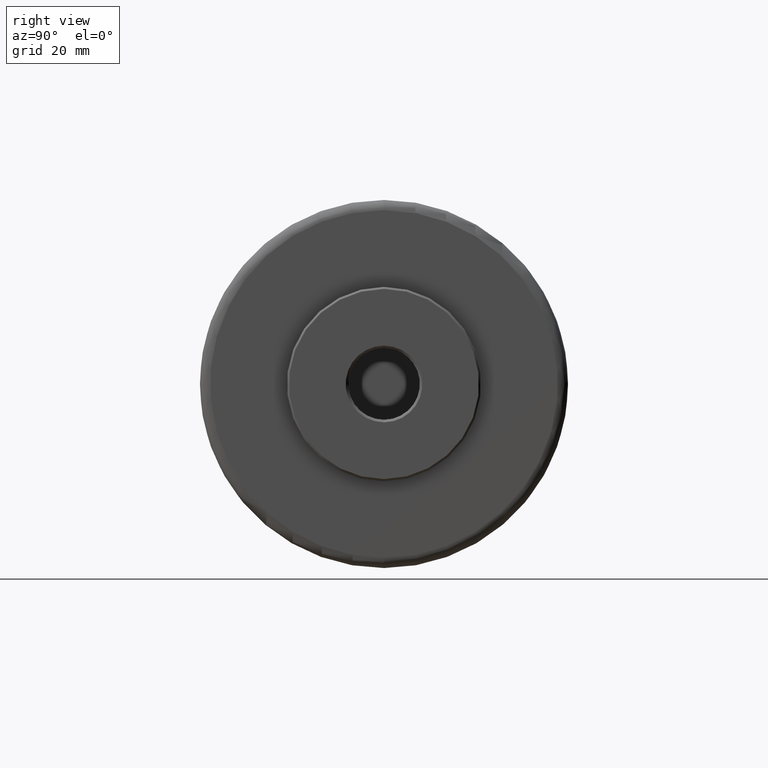
[diagram: clean part render]
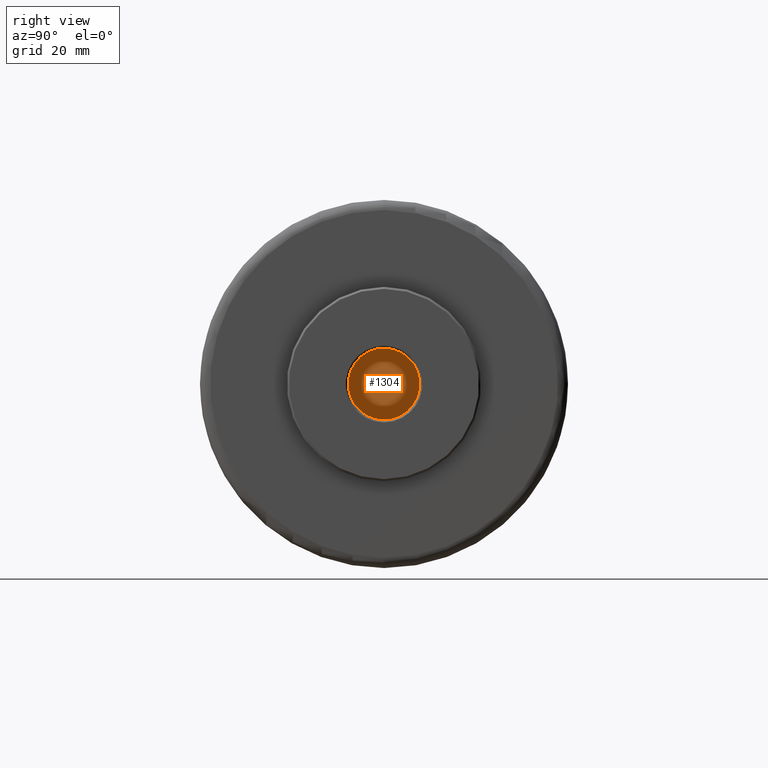
[diagram: same view with one face highlighted and labeled with its STEP entity id]
A machine part, right view. The second image highlights one B-rep face of the part: STEP entity #1304.
In plain terms, the highlighted planar face has unit normal (1, 0, 0).
Its self-contained STEP definition (entity closure, byte-faithful):
#242 = DIRECTION ( 'NONE',  ( 1.000000000000000000, 0.0000000000000000000, 0.0000000000000000000 ) ) ;
#276 = VERTEX_POINT ( 'NONE', #713 ) ;
#308 = CIRCLE ( 'NONE', #386, 6.999999999999993800 ) ;
#386 = AXIS2_PLACEMENT_3D ( 'NONE', #433, #450, #1264 ) ;
#426 = EDGE_CURVE ( 'NONE', #505, #276, #308, .T. ) ;
#433 = CARTESIAN_POINT ( 'NONE',  ( 60.50000000000003600, 0.0000000000000000000, 0.0000000000000000000 ) ) ;
#450 = DIRECTION ( 'NONE',  ( -1.000000000000000000, -0.0000000000000000000, -0.0000000000000000000 ) ) ;
#477 = CARTESIAN_POINT ( 'NONE',  ( 60.50000000000003600, 8.572527594031468300E-016, -6.999999999999993800 ) ) ;
#505 = VERTEX_POINT ( 'NONE', #477 ) ;
#673 = PLANE ( 'NONE',  #764 ) ;
#713 = CARTESIAN_POINT ( 'NONE',  ( 60.50000000000003600, 0.0000000000000000000, 6.999999999999993800 ) ) ;
#740 = DIRECTION ( 'NONE',  ( 0.0000000000000000000, 0.0000000000000000000, 1.000000000000000000 ) ) ;
#764 = AXIS2_PLACEMENT_3D ( 'NONE', #899, #242, #1001 ) ;
#803 = EDGE_CURVE ( 'NONE', #276, #505, #840, .T. ) ;
#840 = CIRCLE ( 'NONE', #855, 6.999999999999993800 ) ;
#855 = AXIS2_PLACEMENT_3D ( 'NONE', #1248, #875, #740 ) ;
#875 = DIRECTION ( 'NONE',  ( -1.000000000000000000, -0.0000000000000000000, -0.0000000000000000000 ) ) ;
#899 = CARTESIAN_POINT ( 'NONE',  ( 60.50000000000003600, 6.999999999999993800, 0.0000000000000000000 ) ) ;
#981 = ORIENTED_EDGE ( 'NONE', *, *, #803, .F. ) ;
#996 = ORIENTED_EDGE ( 'NONE', *, *, #426, .F. ) ;
#1001 = DIRECTION ( 'NONE',  ( 0.0000000000000000000, 0.0000000000000000000, -1.000000000000000000 ) ) ;
#1104 = EDGE_LOOP ( 'NONE', ( #981, #996 ) ) ;
#1248 = CARTESIAN_POINT ( 'NONE',  ( 60.50000000000003600, 0.0000000000000000000, 0.0000000000000000000 ) ) ;
#1264 = DIRECTION ( 'NONE',  ( 0.0000000000000000000, 0.0000000000000000000, 1.000000000000000000 ) ) ;
#1304 = ADVANCED_FACE ( 'NONE', ( #1334 ), #673, .T. ) ;
#1334 = FACE_OUTER_BOUND ( 'NONE', #1104, .T. ) ;